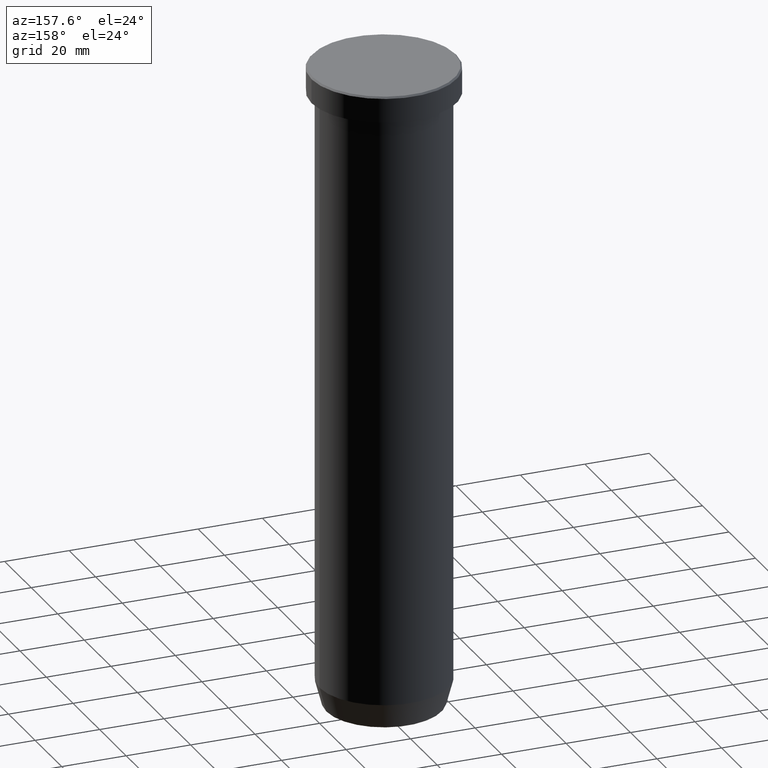
[diagram: clean part render]
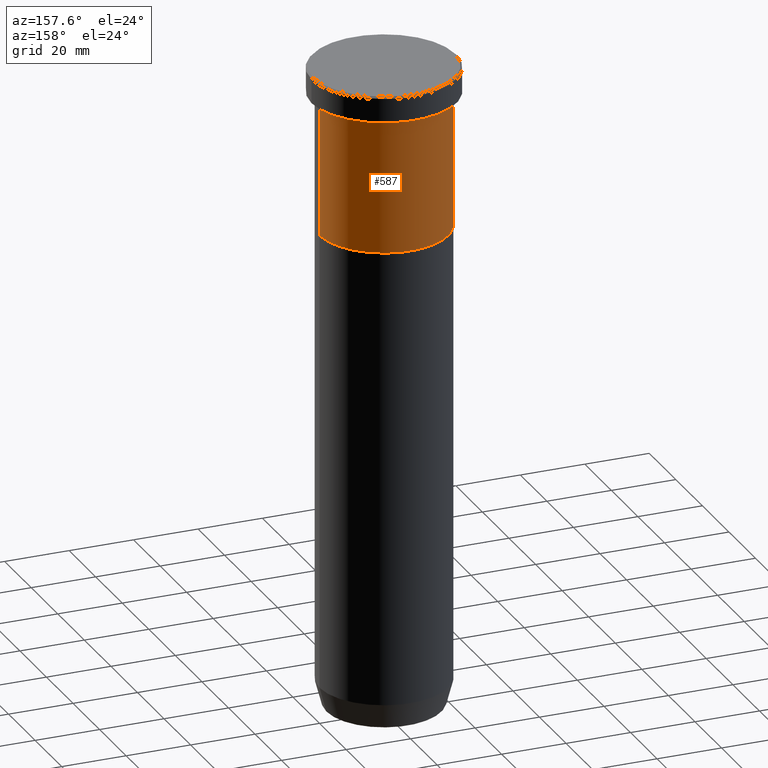
[diagram: same view with one face highlighted and labeled with its STEP entity id]
A machine part, auxiliary view. The second image highlights one B-rep face of the part: STEP entity #587.
In plain terms, the highlighted cylindrical surface (partial cylindrical patch) has radius 20 mm, axis along (-0, -0, 1).
Its self-contained STEP definition (entity closure, byte-faithful):
#25 = CARTESIAN_POINT ( 'NONE',  ( 0.000000000000000000, 0.000000000000000000, 0.000000000000000000 ) ) ;
#51 = VERTEX_POINT ( 'NONE', #436 ) ;
#65 = LINE ( 'NONE', #249, #390 ) ;
#74 = FACE_OUTER_BOUND ( 'NONE', #290, .T. ) ;
#82 = EDGE_CURVE ( 'NONE', #118, #51, #65, .T. ) ;
#85 = AXIS2_PLACEMENT_3D ( 'NONE', #455, #264, #321 ) ;
#104 = ORIENTED_EDGE ( 'NONE', *, *, #272, .T. ) ;
#116 = EDGE_CURVE ( 'NONE', #118, #352, #263, .T. ) ;
#118 = VERTEX_POINT ( 'NONE', #167 ) ;
#122 = CARTESIAN_POINT ( 'NONE',  ( -20.00000000000000000, 2.449293598294706513E-15, -8.999999999999998224 ) ) ;
#139 = ORIENTED_EDGE ( 'NONE', *, *, #265, .F. ) ;
#167 = CARTESIAN_POINT ( 'NONE',  ( 20.00000000000000000, 0.000000000000000000, -50.00000000000000000 ) ) ;
#174 = LINE ( 'NONE', #511, #553 ) ;
#177 = CARTESIAN_POINT ( 'NONE',  ( -20.00000000000000000, 2.449293598294706513E-15, -50.00000000000000000 ) ) ;
#182 = CIRCLE ( 'NONE', #85, 20.00000000000000000 ) ;
#186 = DIRECTION ( 'NONE',  ( -0.000000000000000000, -0.000000000000000000, 1.000000000000000000 ) ) ;
#213 = CARTESIAN_POINT ( 'NONE',  ( 0.000000000000000000, 0.000000000000000000, -50.00000000000000000 ) ) ;
#249 = CARTESIAN_POINT ( 'NONE',  ( 20.00000000000000000, 0.000000000000000000, 0.000000000000000000 ) ) ;
#255 = DIRECTION ( 'NONE',  ( -0.000000000000000000, -0.000000000000000000, 1.000000000000000000 ) ) ;
#263 = CIRCLE ( 'NONE', #441, 20.00000000000000000 ) ;
#264 = DIRECTION ( 'NONE',  ( -0.000000000000000000, -0.000000000000000000, 1.000000000000000000 ) ) ;
#265 = EDGE_CURVE ( 'NONE', #51, #562, #182, .T. ) ;
#272 = EDGE_CURVE ( 'NONE', #352, #562, #174, .T. ) ;
#290 = EDGE_LOOP ( 'NONE', ( #481, #104, #139, #592 ) ) ;
#321 = DIRECTION ( 'NONE',  ( 1.000000000000000000, 0.000000000000000000, 0.000000000000000000 ) ) ;
#352 = VERTEX_POINT ( 'NONE', #177 ) ;
#390 = VECTOR ( 'NONE', #255, 1000.000000000000000 ) ;
#424 = DIRECTION ( 'NONE',  ( 1.000000000000000000, 0.000000000000000000, 0.000000000000000000 ) ) ;
#436 = CARTESIAN_POINT ( 'NONE',  ( 20.00000000000000000, 0.000000000000000000, -8.999999999999998224 ) ) ;
#439 = AXIS2_PLACEMENT_3D ( 'NONE', #25, #186, #424 ) ;
#441 = AXIS2_PLACEMENT_3D ( 'NONE', #213, #442, #482 ) ;
#442 = DIRECTION ( 'NONE',  ( -0.000000000000000000, -0.000000000000000000, 1.000000000000000000 ) ) ;
#449 = CYLINDRICAL_SURFACE ( 'NONE', #439, 20.00000000000000000 ) ;
#455 = CARTESIAN_POINT ( 'NONE',  ( 0.000000000000000000, 0.000000000000000000, -8.999999999999998224 ) ) ;
#481 = ORIENTED_EDGE ( 'NONE', *, *, #116, .T. ) ;
#482 = DIRECTION ( 'NONE',  ( 1.000000000000000000, 0.000000000000000000, 0.000000000000000000 ) ) ;
#511 = CARTESIAN_POINT ( 'NONE',  ( -20.00000000000000000, 2.449293598294706513E-15, 0.000000000000000000 ) ) ;
#553 = VECTOR ( 'NONE', #583, 1000.000000000000000 ) ;
#562 = VERTEX_POINT ( 'NONE', #122 ) ;
#583 = DIRECTION ( 'NONE',  ( -0.000000000000000000, -0.000000000000000000, 1.000000000000000000 ) ) ;
#587 = ADVANCED_FACE ( 'NONE', ( #74 ), #449, .T. ) ;
#592 = ORIENTED_EDGE ( 'NONE', *, *, #82, .F. ) ;